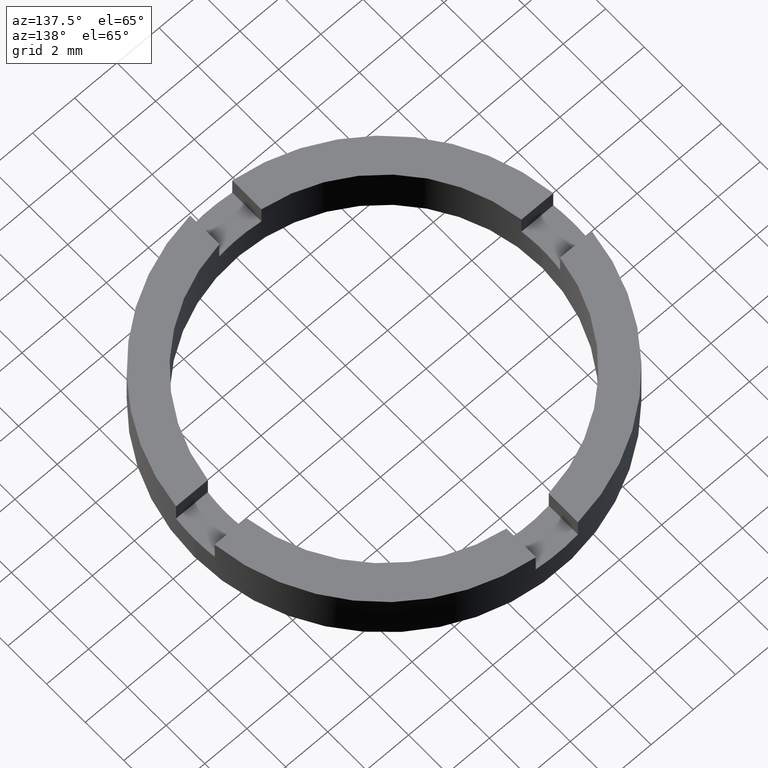
[diagram: clean part render]
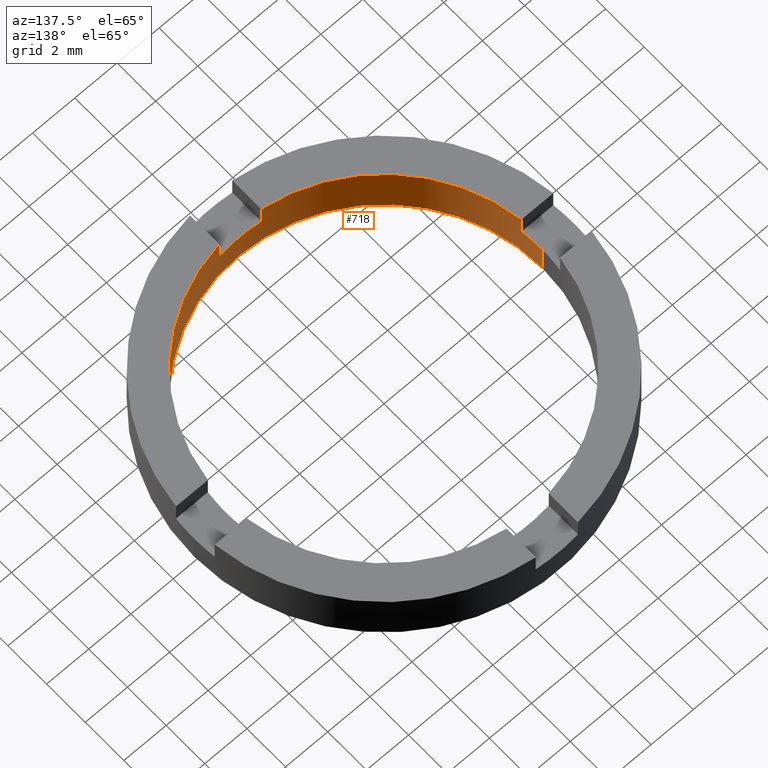
[diagram: same view with one face highlighted and labeled with its STEP entity id]
A machine part, auxiliary view. The second image highlights one B-rep face of the part: STEP entity #718.
In plain terms, the highlighted cylindrical surface (partial cylindrical patch) has radius 7.5 mm, axis along (-0, -0, -1).
Its self-contained STEP definition (entity closure, byte-faithful):
#9 = EDGE_CURVE ( 'NONE', #562, #535, #103, .T. ) ;
#22 = ORIENTED_EDGE ( 'NONE', *, *, #638, .F. ) ;
#29 = CARTESIAN_POINT ( 'NONE',  ( -0.9999999999999986677, -7.433034373659253013, 1.500000000000000000 ) ) ;
#33 = CARTESIAN_POINT ( 'NONE',  ( -7.500000000000000000, 0.000000000000000000, 1.500000000000000000 ) ) ;
#35 = CIRCLE ( 'NONE', #748, 7.500000000000000000 ) ;
#40 = CIRCLE ( 'NONE', #275, 7.500000000000000000 ) ;
#41 = DIRECTION ( 'NONE',  ( 1.000000000000000000, 1.065814103640150279E-14, 0.000000000000000000 ) ) ;
#45 = CARTESIAN_POINT ( 'NONE',  ( -0.9999999999999986677, -7.433034373659253013, 1.500000000000000000 ) ) ;
#52 = CIRCLE ( 'NONE', #683, 7.500000000000000000 ) ;
#56 = VECTOR ( 'NONE', #427, 1000.000000000000000 ) ;
#71 = DIRECTION ( 'NONE',  ( -0.000000000000000000, -0.000000000000000000, 1.000000000000000000 ) ) ;
#72 = FACE_OUTER_BOUND ( 'NONE', #276, .T. ) ;
#80 = VECTOR ( 'NONE', #670, 1000.000000000000000 ) ;
#94 = VECTOR ( 'NONE', #71, 1000.000000000000000 ) ;
#100 = EDGE_CURVE ( 'NONE', #665, #562, #52, .T. ) ;
#101 = CARTESIAN_POINT ( 'NONE',  ( 7.500000000000000000, 9.184850993605147944E-16, 1.500000000000000000 ) ) ;
#103 = LINE ( 'NONE', #635, #94 ) ;
#114 = AXIS2_PLACEMENT_3D ( 'NONE', #487, #747, #41 ) ;
#140 = CARTESIAN_POINT ( 'NONE',  ( 0.000000000000000000, 0.000000000000000000, 1.500000000000000000 ) ) ;
#145 = CARTESIAN_POINT ( 'NONE',  ( 0.000000000000000000, 0.000000000000000000, 0.000000000000000000 ) ) ;
#172 = VERTEX_POINT ( 'NONE', #684 ) ;
#182 = ORIENTED_EDGE ( 'NONE', *, *, #336, .F. ) ;
#198 = DIRECTION ( 'NONE',  ( 1.000000000000000000, 0.000000000000000000, 0.000000000000000000 ) ) ;
#203 = ORIENTED_EDGE ( 'NONE', *, *, #696, .T. ) ;
#212 = CARTESIAN_POINT ( 'NONE',  ( 7.500000000000000000, 9.184850993605147944E-16, 0.000000000000000000 ) ) ;
#217 = DIRECTION ( 'NONE',  ( 0.000000000000000000, 0.000000000000000000, 1.000000000000000000 ) ) ;
#224 = EDGE_CURVE ( 'NONE', #542, #535, #40, .T. ) ;
#250 = ORIENTED_EDGE ( 'NONE', *, *, #459, .F. ) ;
#256 = CARTESIAN_POINT ( 'NONE',  ( 1.000000000000001332, -7.433034373659253013, 2.500000000000000000 ) ) ;
#260 = ORIENTED_EDGE ( 'NONE', *, *, #100, .F. ) ;
#263 = EDGE_CURVE ( 'NONE', #661, #702, #590, .T. ) ;
#268 = ORIENTED_EDGE ( 'NONE', *, *, #734, .T. ) ;
#275 = AXIS2_PLACEMENT_3D ( 'NONE', #473, #758, #354 ) ;
#276 = EDGE_LOOP ( 'NONE', ( #260, #447, #250, #685, #738, #268, #462, #22, #182, #203, #430, #726 ) ) ;
#290 = EDGE_CURVE ( 'NONE', #665, #527, #582, .T. ) ;
#292 = CARTESIAN_POINT ( 'NONE',  ( -7.500000000000000000, 0.000000000000000000, 2.500000000000000000 ) ) ;
#304 = CIRCLE ( 'NONE', #114, 7.500000000000000000 ) ;
#336 = EDGE_CURVE ( 'NONE', #436, #433, #35, .T. ) ;
#339 = DIRECTION ( 'NONE',  ( 0.000000000000000000, 0.000000000000000000, 1.000000000000000000 ) ) ;
#350 = AXIS2_PLACEMENT_3D ( 'NONE', #423, #339, #763 ) ;
#354 = DIRECTION ( 'NONE',  ( 1.000000000000000000, 0.000000000000000000, 0.000000000000000000 ) ) ;
#355 = LINE ( 'NONE', #465, #626 ) ;
#356 = CARTESIAN_POINT ( 'NONE',  ( 0.000000000000000000, 0.000000000000000000, 2.500000000000000000 ) ) ;
#358 = CIRCLE ( 'NONE', #350, 7.500000000000000000 ) ;
#360 = DIRECTION ( 'NONE',  ( 1.000000000000000000, 0.000000000000000000, 0.000000000000000000 ) ) ;
#371 = CARTESIAN_POINT ( 'NONE',  ( 7.500000000000000000, 9.184850993605147944E-16, 2.500000000000000000 ) ) ;
#413 = CARTESIAN_POINT ( 'NONE',  ( -7.500000000000000000, 0.000000000000000000, 0.000000000000000000 ) ) ;
#423 = CARTESIAN_POINT ( 'NONE',  ( 0.000000000000000000, 0.000000000000000000, 2.500000000000000000 ) ) ;
#426 = CARTESIAN_POINT ( 'NONE',  ( -7.433034373659256566, -0.9999999999999733546, 1.500000000000000000 ) ) ;
#427 = DIRECTION ( 'NONE',  ( -0.000000000000000000, -0.000000000000000000, -1.000000000000000000 ) ) ;
#429 = EDGE_CURVE ( 'NONE', #775, #661, #304, .T. ) ;
#430 = ORIENTED_EDGE ( 'NONE', *, *, #224, .T. ) ;
#433 = VERTEX_POINT ( 'NONE', #29 ) ;
#436 = VERTEX_POINT ( 'NONE', #595 ) ;
#440 = DIRECTION ( 'NONE',  ( 0.000000000000000000, -0.000000000000000000, -1.000000000000000000 ) ) ;
#447 = ORIENTED_EDGE ( 'NONE', *, *, #290, .T. ) ;
#459 = EDGE_CURVE ( 'NONE', #702, #527, #606, .T. ) ;
#462 = ORIENTED_EDGE ( 'NONE', *, *, #613, .T. ) ;
#465 = CARTESIAN_POINT ( 'NONE',  ( -7.433034373659256566, -0.9999999999999733546, 1.500000000000000000 ) ) ;
#469 = DIRECTION ( 'NONE',  ( -0.000000000000000000, -0.000000000000000000, 1.000000000000000000 ) ) ;
#473 = CARTESIAN_POINT ( 'NONE',  ( 0.000000000000000000, 0.000000000000000000, 2.500000000000000000 ) ) ;
#481 = DIRECTION ( 'NONE',  ( -1.000000000000000000, 0.000000000000000000, 0.000000000000000000 ) ) ;
#487 = CARTESIAN_POINT ( 'NONE',  ( 0.000000000000000000, 0.000000000000000000, 1.500000000000000000 ) ) ;
#518 = VERTEX_POINT ( 'NONE', #649 ) ;
#525 = CARTESIAN_POINT ( 'NONE',  ( 0.000000000000000000, 0.000000000000000000, 1.500000000000000000 ) ) ;
#527 = VERTEX_POINT ( 'NONE', #212 ) ;
#535 = VERTEX_POINT ( 'NONE', #698 ) ;
#542 = VERTEX_POINT ( 'NONE', #256 ) ;
#562 = VERTEX_POINT ( 'NONE', #583 ) ;
#582 = LINE ( 'NONE', #371, #56 ) ;
#583 = CARTESIAN_POINT ( 'NONE',  ( 7.433034373659249461, -1.000000000000028866, 1.500000000000000000 ) ) ;
#585 = VECTOR ( 'NONE', #604, 1000.000000000000000 ) ;
#590 = LINE ( 'NONE', #292, #585 ) ;
#595 = CARTESIAN_POINT ( 'NONE',  ( 1.000000000000001110, -7.433034373659252125, 1.500000000000000000 ) ) ;
#604 = DIRECTION ( 'NONE',  ( -0.000000000000000000, -0.000000000000000000, -1.000000000000000000 ) ) ;
#606 = CIRCLE ( 'NONE', #656, 7.500000000000000000 ) ;
#613 = EDGE_CURVE ( 'NONE', #518, #172, #358, .T. ) ;
#617 = VECTOR ( 'NONE', #469, 1000.000000000000000 ) ;
#618 = LINE ( 'NONE', #660, #80 ) ;
#622 = LINE ( 'NONE', #45, #617 ) ;
#626 = VECTOR ( 'NONE', #751, 1000.000000000000000 ) ;
#632 = CYLINDRICAL_SURFACE ( 'NONE', #782, 7.500000000000000000 ) ;
#635 = CARTESIAN_POINT ( 'NONE',  ( 7.433034373659249461, -1.000000000000028866, 1.500000000000000000 ) ) ;
#638 = EDGE_CURVE ( 'NONE', #433, #172, #622, .T. ) ;
#649 = CARTESIAN_POINT ( 'NONE',  ( -7.433034373659256566, -0.9999999999999733546, 2.500000000000000000 ) ) ;
#656 = AXIS2_PLACEMENT_3D ( 'NONE', #145, #217, #707 ) ;
#660 = CARTESIAN_POINT ( 'NONE',  ( 1.000000000000001332, -7.433034373659253013, 1.500000000000000000 ) ) ;
#661 = VERTEX_POINT ( 'NONE', #33 ) ;
#665 = VERTEX_POINT ( 'NONE', #101 ) ;
#670 = DIRECTION ( 'NONE',  ( -0.000000000000000000, -0.000000000000000000, 1.000000000000000000 ) ) ;
#683 = AXIS2_PLACEMENT_3D ( 'NONE', #140, #440, #198 ) ;
#684 = CARTESIAN_POINT ( 'NONE',  ( -0.9999999999999986677, -7.433034373659253013, 2.500000000000000000 ) ) ;
#685 = ORIENTED_EDGE ( 'NONE', *, *, #263, .F. ) ;
#696 = EDGE_CURVE ( 'NONE', #436, #542, #618, .T. ) ;
#698 = CARTESIAN_POINT ( 'NONE',  ( 7.433034373659249461, -1.000000000000028866, 2.500000000000000000 ) ) ;
#702 = VERTEX_POINT ( 'NONE', #413 ) ;
#707 = DIRECTION ( 'NONE',  ( 1.000000000000000000, 0.000000000000000000, 0.000000000000000000 ) ) ;
#718 = ADVANCED_FACE ( 'NONE', ( #72 ), #632, .F. ) ;
#726 = ORIENTED_EDGE ( 'NONE', *, *, #9, .F. ) ;
#728 = DIRECTION ( 'NONE',  ( 0.000000000000000000, -0.000000000000000000, -1.000000000000000000 ) ) ;
#734 = EDGE_CURVE ( 'NONE', #775, #518, #355, .T. ) ;
#738 = ORIENTED_EDGE ( 'NONE', *, *, #429, .F. ) ;
#747 = DIRECTION ( 'NONE',  ( 0.000000000000000000, -0.000000000000000000, -1.000000000000000000 ) ) ;
#748 = AXIS2_PLACEMENT_3D ( 'NONE', #525, #728, #360 ) ;
#751 = DIRECTION ( 'NONE',  ( -0.000000000000000000, -0.000000000000000000, 1.000000000000000000 ) ) ;
#758 = DIRECTION ( 'NONE',  ( 0.000000000000000000, 0.000000000000000000, 1.000000000000000000 ) ) ;
#763 = DIRECTION ( 'NONE',  ( 1.000000000000000000, 0.000000000000000000, 0.000000000000000000 ) ) ;
#766 = DIRECTION ( 'NONE',  ( -0.000000000000000000, -0.000000000000000000, -1.000000000000000000 ) ) ;
#775 = VERTEX_POINT ( 'NONE', #426 ) ;
#782 = AXIS2_PLACEMENT_3D ( 'NONE', #356, #766, #481 ) ;